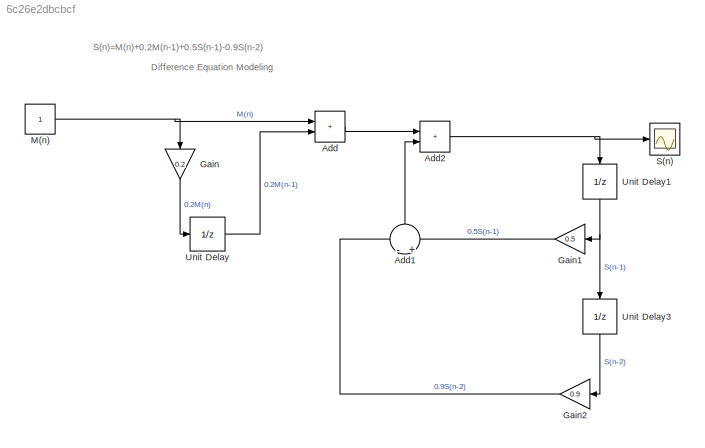
MODEL slx_6c26e2dbcbcf
KIND model
CONFIG AbsTol = auto
CONFIG EnableMultiTasking = off
CONFIG FixedStep = auto
CONFIG MaxStep = auto
CONFIG MinStep = auto
CONFIG RelTol = 1e-3
CONFIG SampleTimeConstraint = Unconstrained
CONFIG SolverName = VariableStepAuto
CONFIG StartTime = 0.0
CONFIG StopTime = 0.1
BLOCK [Sum] Add
  IconShape = rectangular
  Ports = [2, 1]
BLOCK [Sum] Add1
  Inputs = -+
  NameLocation = left
  Ports = [2, 1]
BLOCK [Sum] Add2
  IconShape = rectangular
  Ports = [2, 1]
BLOCK [Gain] Gain
  Gain = 0.2
  NameLocation = left
BLOCK [Gain] Gain1
  Gain = 0.5
BLOCK [Gain] Gain2
  Gain = 0.9
BLOCK [Constant] M(n)
BLOCK [Scope] S(n)
  Floating = off
  NumInputPorts = 1
  Ports = [1]
  ScopeSpecificationString = Simulink.scopes.TimeScopeBlockCfg('CurrentConfiguration', extmgr.ConfigurationSet(extmgr.Configuration('Core','General UI',true),extmgr.Configuration('Core','Source UI',true),extmgr.Configuration('Sources','WiredSimulink',true),extmgr.Configuration('Visuals','Time Domain',true,'SerializedDisplays',{struct('MinYLimReal','0.06312','MaxYLimReal','1.88187','YLabelReal','','MinYLimMag','0.06312','MaxYL...<+1322ch>
BLOCK [UnitDelay] Unit Delay
  HasFrameUpgradeWarning = on
  SampleTime = -1
BLOCK [UnitDelay] Unit Delay1
  HasFrameUpgradeWarning = on
  NameLocation = left
  SampleTime = -1
BLOCK [UnitDelay] Unit Delay3
  HasFrameUpgradeWarning = on
  NameLocation = left
  SampleTime = -1
ANNOTATION (root): Difference Equation Modeling
ANNOTATION (root): S(n)=M(n)+0.2M(n-1)+0.5S(n-1)-0.9S(n-2)
LINE Add1:1 -> Add2:2
NET Add2:1 -> S(n):1, Unit Delay1:1
LINE Add:1 -> Add2:1
LINE Gain1:1 -> Add1:2
LINE Gain2:1 -> Add1:1
LINE Gain:1 -> Unit Delay:1
NET M(n):1 -> Add:1, Gain:1
NET Unit Delay1:1 -> Gain1:1, Unit Delay3:1
LINE Unit Delay3:1 -> Gain2:1
LINE Unit Delay:1 -> Add:2
note: NET lines group one-source signal fan-out (src -> all destinations, sorted); 1:1 wires keep LINE
